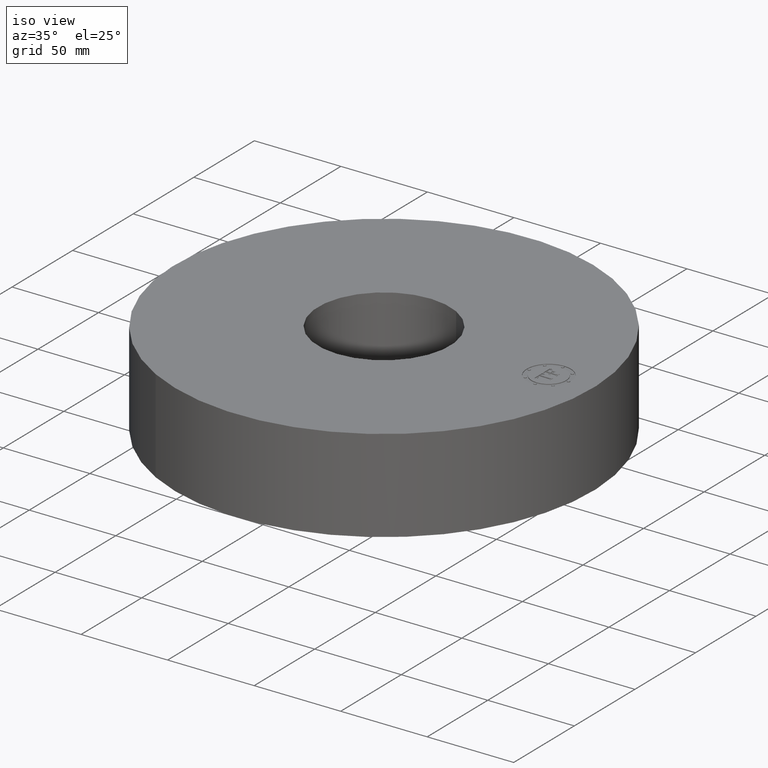
[diagram: clean part render]
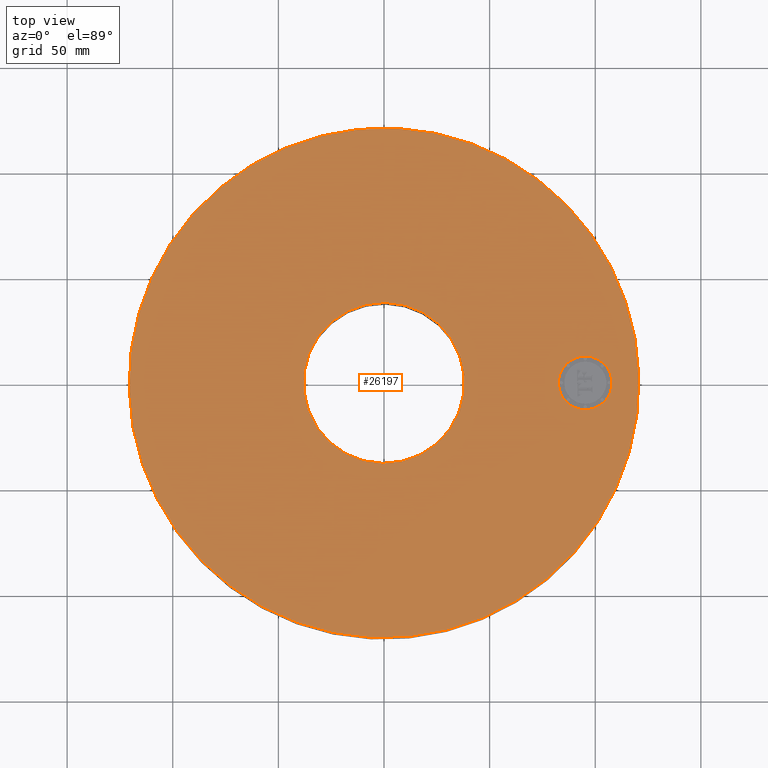
[diagram: tour spotlight — one face highlighted and labeled with its STEP entity id]
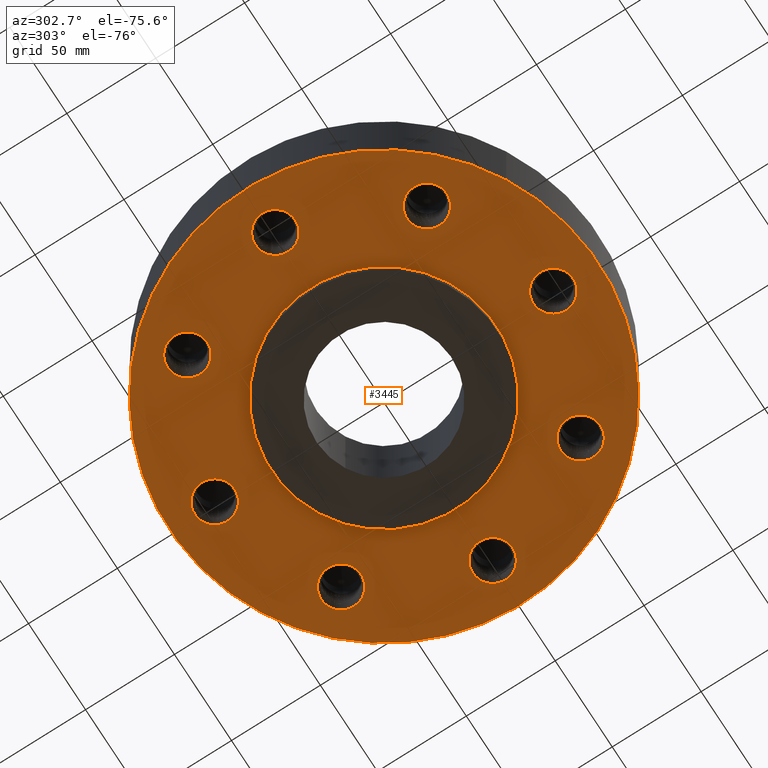
[diagram: tour spotlight — one face highlighted and labeled with its STEP entity id]
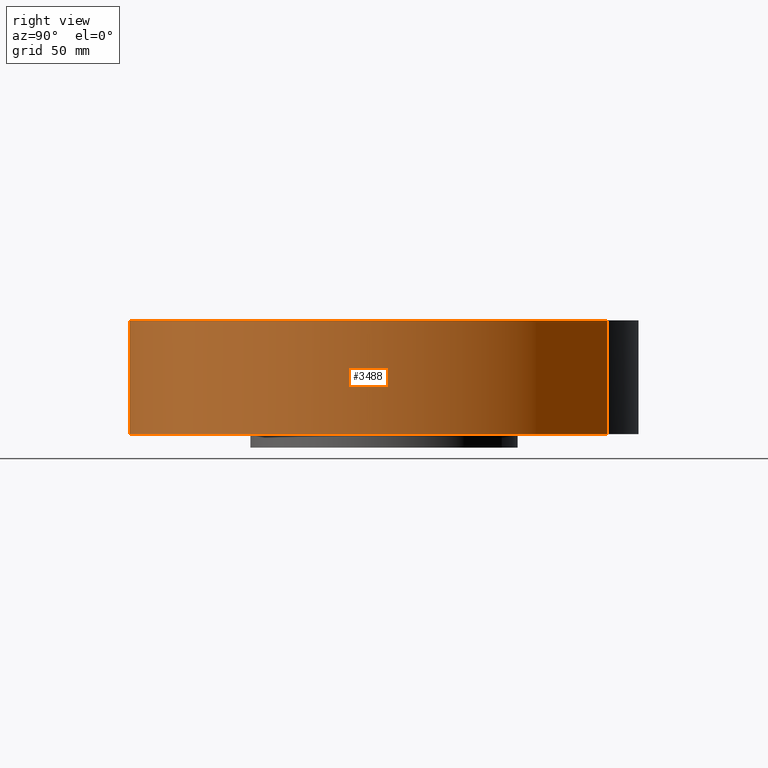
[diagram: tour spotlight — one face highlighted and labeled with its STEP entity id]
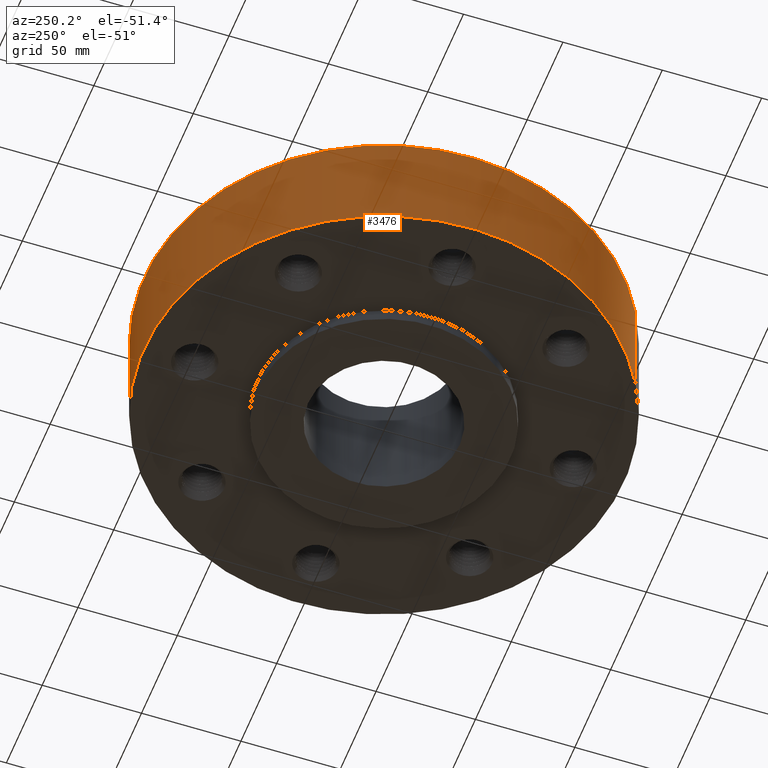
[diagram: tour spotlight — one face highlighted and labeled with its STEP entity id]
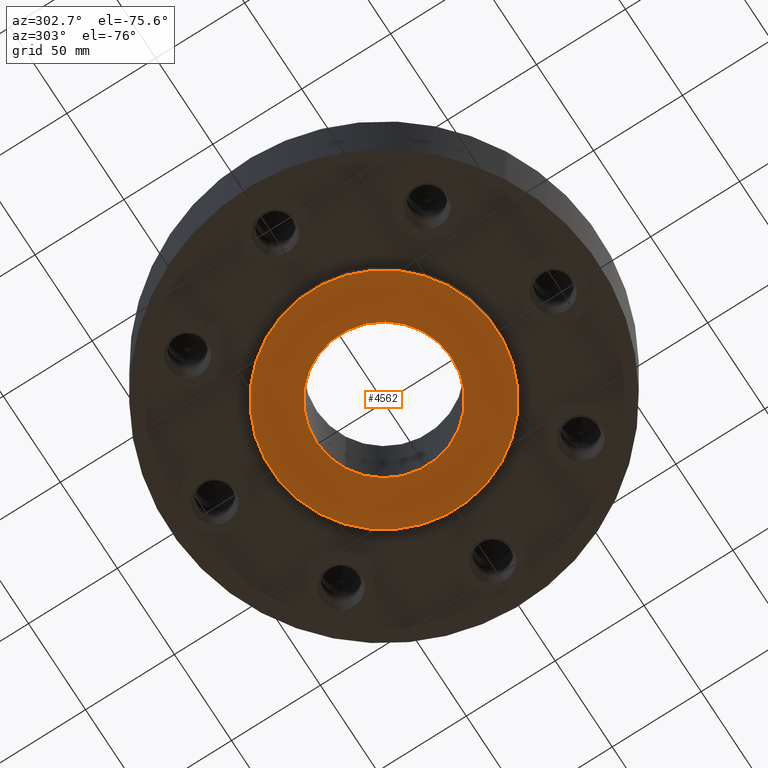
[diagram: tour spotlight — one face highlighted and labeled with its STEP entity id]
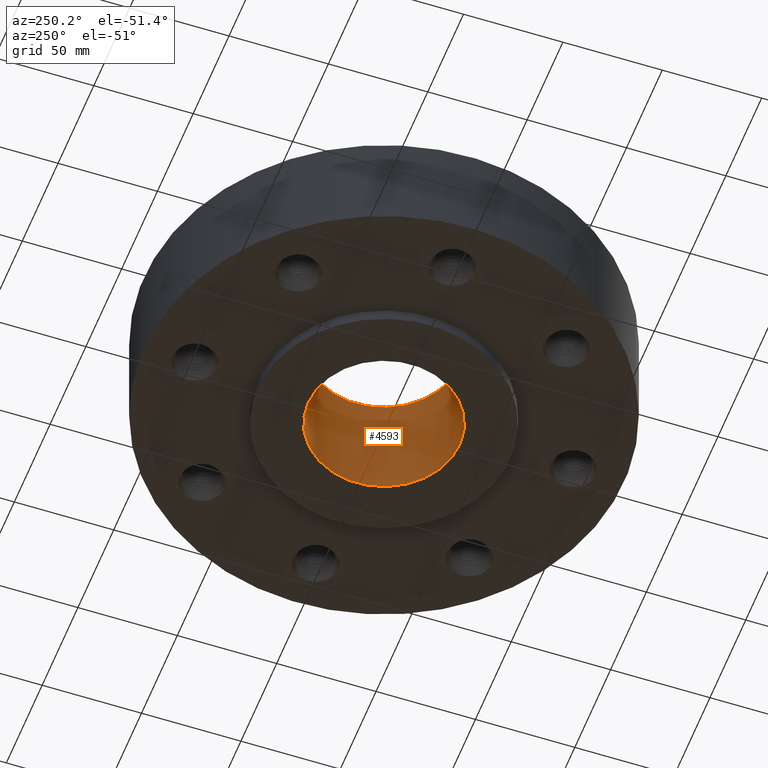
[diagram: tour spotlight — one face highlighted and labeled with its STEP entity id]
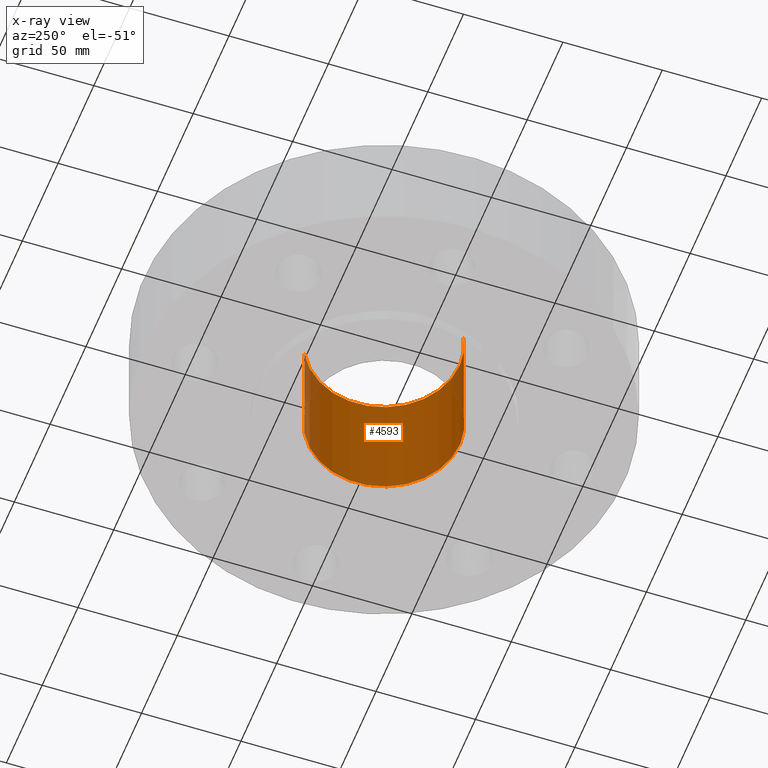
[diagram: x-ray of the same camera — body ghosted, this tour face saturated]
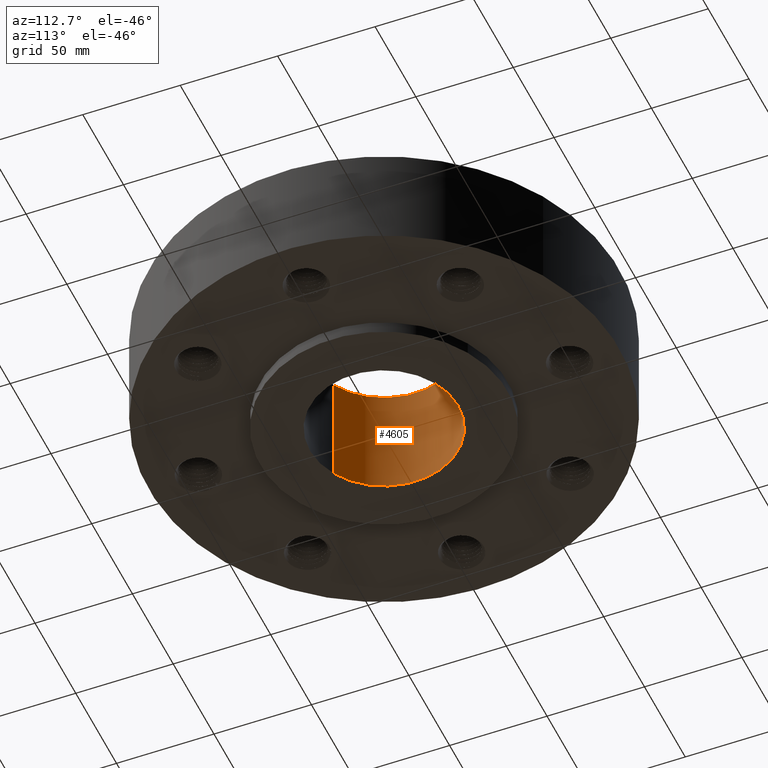
[diagram: tour spotlight — one face highlighted and labeled with its STEP entity id]
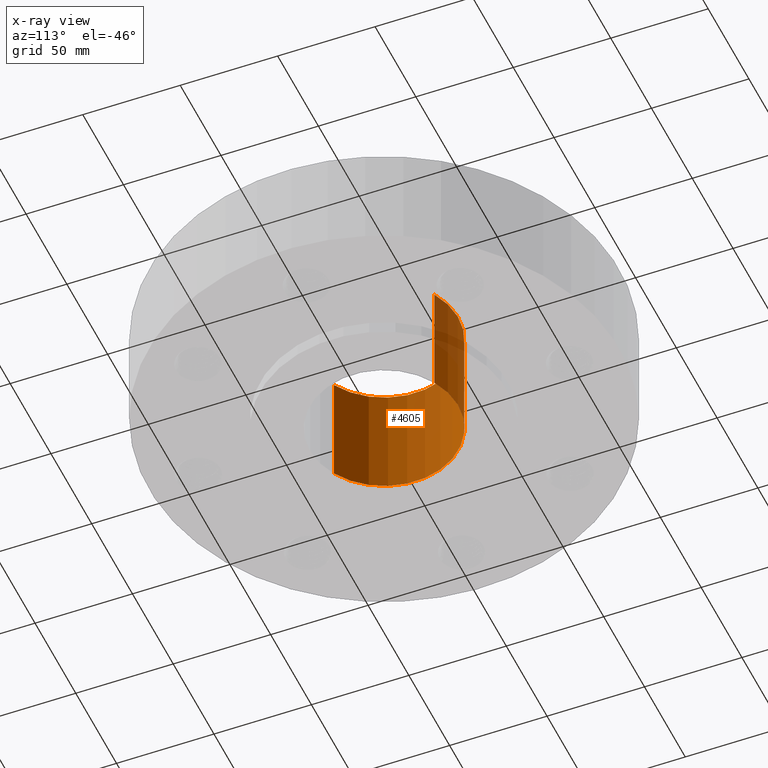
[diagram: x-ray of the same camera — body ghosted, this tour face saturated]
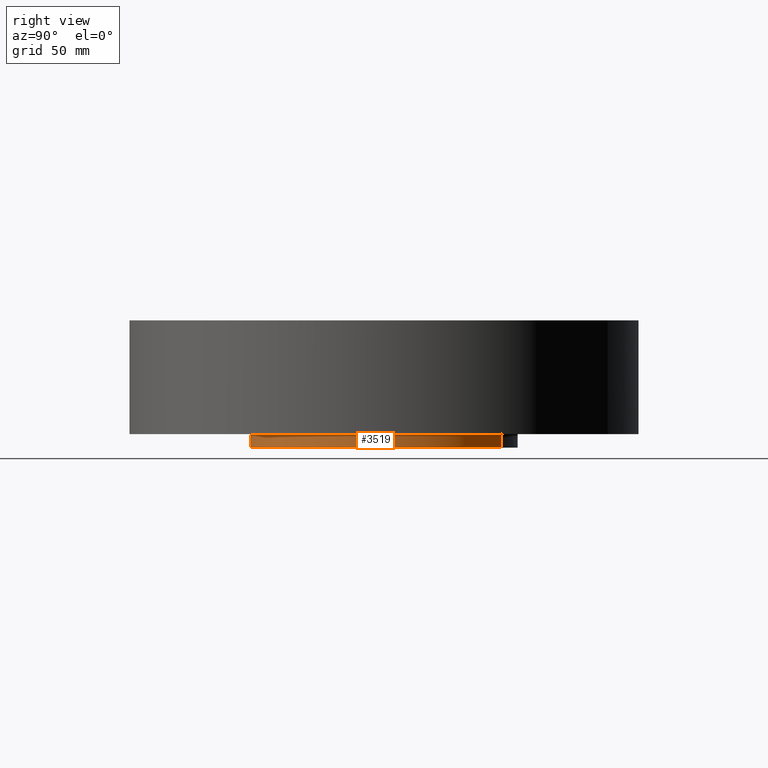
[diagram: tour spotlight — one face highlighted and labeled with its STEP entity id]
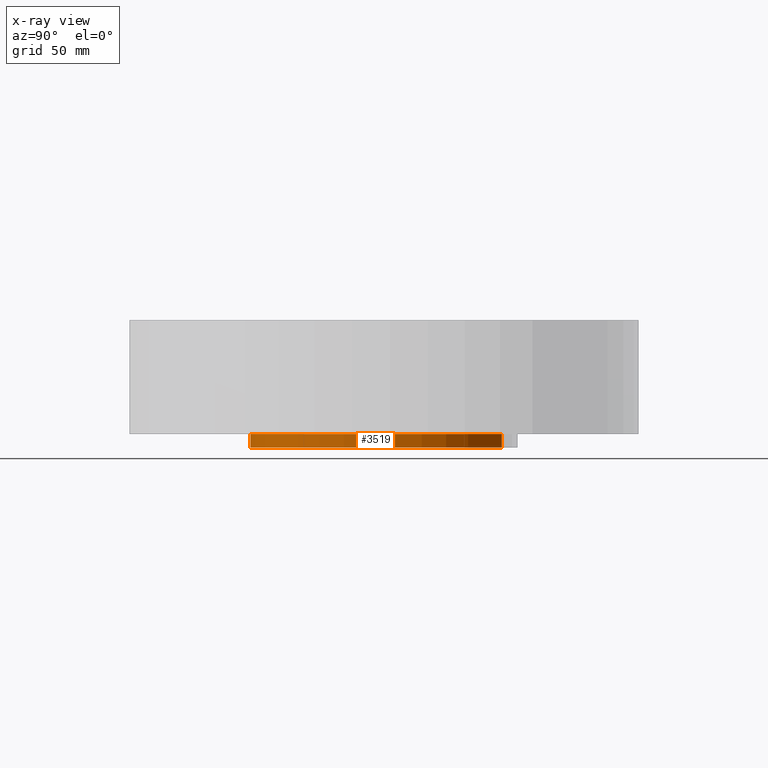
[diagram: x-ray of the same camera — body ghosted, this tour face saturated]
A machine part: a face-by-face anatomy tour. The part has 874 B-rep faces; the first image is the clean iso view, then the 8 largest visible faces are spotlighted one at a time (largest first), each with its STEP entity span.

Face 1 — top view, entity #26197. In plain terms, the highlighted planar face has unit normal (0, 0, -1).
Definition (entity closure, byte-faithful):
#3460=AXIS2_PLACEMENT_3D('Circle Axis2P3D',#3458,#3459,$) ;
#3479=AXIS2_PLACEMENT_3D('Circle Axis2P3D',#3477,#3478,$) ;
#4570=AXIS2_PLACEMENT_3D('Circle Axis2P3D',#4568,#4569,$) ;
#4596=AXIS2_PLACEMENT_3D('Circle Axis2P3D',#4594,#4595,$) ;
#26169=AXIS2_PLACEMENT_3D('Plane Axis2P3D',#26166,#26167,#26168) ;
#26181=AXIS2_PLACEMENT_3D('Circle Axis2P3D',#26179,#26180,$) ;
#26190=AXIS2_PLACEMENT_3D('Circle Axis2P3D',#26188,#26189,$) ;
#3455=CARTESIAN_POINT('Vertex',(-2.27727130838,-4.168517169,2.12000000001)) ;
#3458=CARTESIAN_POINT('Axis2P3D Location',(0.,0.,2.12000000001)) ;
#3462=CARTESIAN_POINT('Vertex',(2.27727130838,4.168517169,2.12000000001)) ;
#3477=CARTESIAN_POINT('Axis2P3D Location',(0.,0.,2.12000000001)) ;
#4568=CARTESIAN_POINT('Axis2P3D Location',(0.,0.,2.12000000001)) ;
#4572=CARTESIAN_POINT('Vertex',(0.719138307909,1.31637384284,2.12000000001)) ;
#4574=CARTESIAN_POINT('Vertex',(-0.719138307909,-1.31637384284,2.12000000001)) ;
#4594=CARTESIAN_POINT('Axis2P3D Location',(0.,0.,2.12000000001)) ;
#26166=CARTESIAN_POINT('Axis2P3D Location',(0.,1.50000000001,2.12000000001)) ;
#26179=CARTESIAN_POINT('Axis2P3D Location',(3.75000000002,0.,2.12000000001)) ;
#26183=CARTESIAN_POINT('Vertex',(3.75000000002,-0.499999995002,2.12000000001)) ;
#26185=CARTESIAN_POINT('Vertex',(3.75000000001,0.499999995002,2.12000000001)) ;
#26188=CARTESIAN_POINT('Axis2P3D Location',(3.75000000002,0.,2.12000000001)) ;
#3459=DIRECTION('Axis2P3D Direction',(0.,0.,-0.0393700787402)) ;
#3478=DIRECTION('Axis2P3D Direction',(0.,0.,-0.0393700787402)) ;
#4569=DIRECTION('Axis2P3D Direction',(0.,0.,-0.0393700787402)) ;
#4595=DIRECTION('Axis2P3D Direction',(0.,0.,-0.0393700787402)) ;
#26167=DIRECTION('Axis2P3D Direction',(0.,0.,-0.0393700787402)) ;
#26168=DIRECTION('Axis2P3D XDirection',(0.0393700787402,0.,0.)) ;
#26180=DIRECTION('Axis2P3D Direction',(0.,0.,-0.0393700787402)) ;
#26189=DIRECTION('Axis2P3D Direction',(0.,0.,-0.0393700787402)) ;
#26172=ORIENTED_EDGE('',*,*,#3481,.F.) ;
#26173=ORIENTED_EDGE('',*,*,#3464,.F.) ;
#26176=ORIENTED_EDGE('',*,*,#4598,.T.) ;
#26177=ORIENTED_EDGE('',*,*,#4576,.T.) ;
#26194=ORIENTED_EDGE('',*,*,#26187,.F.) ;
#26195=ORIENTED_EDGE('',*,*,#26192,.F.) ;
#26178=FACE_BOUND('',#26175,.T.) ;
#26196=FACE_BOUND('',#26193,.T.) ;
#26197=ADVANCED_FACE('PartBody',(#26174,#26178,#26196),#26170,.F.) ;
#3461=CIRCLE('generated circle',#3460,4.75000000002) ;
#3480=CIRCLE('generated circle',#3479,4.75000000002) ;
#4571=CIRCLE('generated circle',#4570,1.50000000001) ;
#4597=CIRCLE('generated circle',#4596,1.50000000001) ;
#26182=CIRCLE('generated circle',#26181,0.499999995002) ;
#26191=CIRCLE('generated circle',#26190,0.499999995002) ;
#3464=EDGE_CURVE('',#3456,#3463,#3461,.T.) ;
#3481=EDGE_CURVE('',#3463,#3456,#3480,.T.) ;
#4576=EDGE_CURVE('',#4573,#4575,#4571,.T.) ;
#4598=EDGE_CURVE('',#4575,#4573,#4597,.T.) ;
#26187=EDGE_CURVE('',#26184,#26186,#26182,.F.) ;
#26192=EDGE_CURVE('',#26186,#26184,#26191,.F.) ;
#26171=EDGE_LOOP('',(#26172,#26173)) ;
#26175=EDGE_LOOP('',(#26176,#26177)) ;
#26193=EDGE_LOOP('',(#26194,#26195)) ;
#26174=FACE_OUTER_BOUND('',#26171,.T.) ;
#26170=PLANE('',#26169) ;
#3456=VERTEX_POINT('',#3455) ;
#3463=VERTEX_POINT('',#3462) ;
#4573=VERTEX_POINT('',#4572) ;
#4575=VERTEX_POINT('',#4574) ;
#26184=VERTEX_POINT('',#26183) ;
#26186=VERTEX_POINT('',#26185) ;

Face 2 — auxiliary view, entity #3445. In plain terms, the highlighted planar face has unit normal (0, 0, -1).
Definition (entity closure, byte-faithful):
#3197=AXIS2_PLACEMENT_3D('Circle Axis2P3D',#3195,#3196,$) ;
#3263=AXIS2_PLACEMENT_3D('Circle Axis2P3D',#3261,#3262,$) ;
#3277=AXIS2_PLACEMENT_3D('Plane Axis2P3D',#3274,#3275,#3276) ;
#3281=AXIS2_PLACEMENT_3D('Circle Axis2P3D',#3279,#3280,$) ;
#3290=AXIS2_PLACEMENT_3D('Circle Axis2P3D',#3288,#3289,$) ;
#3303=AXIS2_PLACEMENT_3D('Circle Axis2P3D',#3301,#3302,$) ;
#3312=AXIS2_PLACEMENT_3D('Circle Axis2P3D',#3310,#3311,$) ;
#3321=AXIS2_PLACEMENT_3D('Circle Axis2P3D',#3319,#3320,$) ;
#3330=AXIS2_PLACEMENT_3D('Circle Axis2P3D',#3328,#3329,$) ;
#3339=AXIS2_PLACEMENT_3D('Circle Axis2P3D',#3337,#3338,$) ;
#3348=AXIS2_PLACEMENT_3D('Circle Axis2P3D',#3346,#3347,$) ;
#3357=AXIS2_PLACEMENT_3D('Circle Axis2P3D',#3355,#3356,$) ;
#3366=AXIS2_PLACEMENT_3D('Circle Axis2P3D',#3364,#3365,$) ;
#3375=AXIS2_PLACEMENT_3D('Circle Axis2P3D',#3373,#3374,$) ;
#3384=AXIS2_PLACEMENT_3D('Circle Axis2P3D',#3382,#3383,$) ;
#3393=AXIS2_PLACEMENT_3D('Circle Axis2P3D',#3391,#3392,$) ;
#3402=AXIS2_PLACEMENT_3D('Circle Axis2P3D',#3400,#3401,$) ;
#3411=AXIS2_PLACEMENT_3D('Circle Axis2P3D',#3409,#3410,$) ;
#3420=AXIS2_PLACEMENT_3D('Circle Axis2P3D',#3418,#3419,$) ;
#3429=AXIS2_PLACEMENT_3D('Circle Axis2P3D',#3427,#3428,$) ;
#3438=AXIS2_PLACEMENT_3D('Circle Axis2P3D',#3436,#3437,$) ;
#3192=CARTESIAN_POINT('Vertex',(3.04041950438,2.86403594306,-8.74191357973E-018)) ;
#3195=CARTESIAN_POINT('Axis2P3D Location',(2.65165042946,2.65165042946,-8.74191357973E-018)) ;
#3199=CARTESIAN_POINT('Vertex',(2.26288135454,2.43926491586,-8.74191357973E-018)) ;
#3261=CARTESIAN_POINT('Axis2P3D Location',(2.65165042946,2.65165042946,-8.74191357973E-018)) ;
#3274=CARTESIAN_POINT('Axis2P3D Location',(0.,4.75000000002,0.)) ;
#3279=CARTESIAN_POINT('Axis2P3D Location',(0.,0.,0.)) ;
#3283=CARTESIAN_POINT('Vertex',(-2.27727130838,-4.168517169,-3.94435140717E-014)) ;
#3285=CARTESIAN_POINT('Vertex',(2.27727130838,4.168517169,-3.94435140717E-014)) ;
#3288=CARTESIAN_POINT('Axis2P3D Location',(0.,0.,0.)) ;
#3301=CARTESIAN_POINT('Axis2P3D Location',(0.,0.,0.)) ;
#3305=CARTESIAN_POINT('Vertex',(1.19856384652,2.19395640473,-2.82538646897E-014)) ;
#3307=CARTESIAN_POINT('Vertex',(-1.19856384652,-2.19395640473,-2.82538646897E-014)) ;
#3310=CARTESIAN_POINT('Axis2P3D Location',(0.,0.,0.)) ;
#3319=CARTESIAN_POINT('Axis2P3D Location',(3.75000000001,1.1189649382E-015,0.)) ;
#3323=CARTESIAN_POINT('Vertex',(4.1750804861,-0.124722012297,0.)) ;
#3325=CARTESIAN_POINT('Vertex',(3.32491951393,0.124722012297,8.74191357973E-018)) ;
#3328=CARTESIAN_POINT('Axis2P3D Location',(3.75000000002,1.1189649382E-015,0.)) ;
#3337=CARTESIAN_POINT('Axis2P3D Location',(2.65165042946,-2.65165042946,0.)) ;
#3341=CARTESIAN_POINT('Vertex',(2.86403594306,-3.04041950438,0.)) ;
#3343=CARTESIAN_POINT('Vertex',(2.43926491586,-2.26288135454,-8.74191357973E-018)) ;
#3346=CARTESIAN_POINT('Axis2P3D Location',(2.65165042946,-2.65165042946,0.)) ;
#3355=CARTESIAN_POINT('Axis2P3D Location',(1.71341506163E-015,-3.75000000001,0.)) ;
#3359=CARTESIAN_POINT('Vertex',(-0.124722012297,-4.1750804861,0.)) ;
#3361=CARTESIAN_POINT('Vertex',(0.124722012297,-3.32491951393,8.74191357973E-018)) ;
#3364=CARTESIAN_POINT('Axis2P3D Location',(1.64347975299E-015,-3.75000000001,0.)) ;
#3373=CARTESIAN_POINT('Axis2P3D Location',(-2.65165042946,-2.65165042946,0.)) ;
#3377=CARTESIAN_POINT('Vertex',(-3.04041950438,-2.86403594306,0.)) ;
#3379=CARTESIAN_POINT('Vertex',(-2.26288135454,-2.43926491586,-8.74191357973E-018)) ;
#3382=CARTESIAN_POINT('Axis2P3D Location',(-2.65165042946,-2.65165042946,0.)) ;
#3391=CARTESIAN_POINT('Axis2P3D Location',(-3.75000000002,-1.1189649382E-015,0.)) ;
#3395=CARTESIAN_POINT('Vertex',(-4.1750804861,0.124722012297,0.)) ;
#3397=CARTESIAN_POINT('Vertex',(-3.32491951393,-0.124722012297,9.6161049377E-017)) ;
#3400=CARTESIAN_POINT('Axis2P3D Location',(-3.75000000002,-1.1189649382E-015,0.)) ;
#3409=CARTESIAN_POINT('Axis2P3D Location',(-2.65165042946,2.65165042946,0.)) ;
#3413=CARTESIAN_POINT('Vertex',(-2.86403594306,3.04041950438,0.)) ;
#3415=CARTESIAN_POINT('Vertex',(-2.43926491586,2.26288135454,-8.74191357973E-018)) ;
#3418=CARTESIAN_POINT('Axis2P3D Location',(-2.65165042946,2.65165042946,0.)) ;
#3427=CARTESIAN_POINT('Axis2P3D Location',(-1.88825333322E-015,3.75000000002,0.)) ;
#3431=CARTESIAN_POINT('Vertex',(0.124722012297,4.1750804861,0.)) ;
#3433=CARTESIAN_POINT('Vertex',(-0.124722012297,3.32491951393,8.74191357973E-018)) ;
#3436=CARTESIAN_POINT('Axis2P3D Location',(-1.67844740731E-015,3.75000000002,0.)) ;
#3196=DIRECTION('Axis2P3D Direction',(0.,0.,-0.0393700787402)) ;
#3262=DIRECTION('Axis2P3D Direction',(0.,0.,-0.0393700787402)) ;
#3275=DIRECTION('Axis2P3D Direction',(0.,0.,-0.0393700787402)) ;
#3276=DIRECTION('Axis2P3D XDirection',(0.0393700787402,0.,0.)) ;
#3280=DIRECTION('Axis2P3D Direction',(0.,0.,-0.0393700787402)) ;
#3289=DIRECTION('Axis2P3D Direction',(0.,0.,-0.0393700787402)) ;
#3302=DIRECTION('Axis2P3D Direction',(0.,0.,-0.0393700787402)) ;
#3311=DIRECTION('Axis2P3D Direction',(0.,0.,-0.0393700787402)) ;
#3320=DIRECTION('Axis2P3D Direction',(0.,0.,-0.0393700787402)) ;
#3329=DIRECTION('Axis2P3D Direction',(0.,0.,-0.0393700787402)) ;
#3338=DIRECTION('Axis2P3D Direction',(0.,0.,-0.0393700787402)) ;
#3347=DIRECTION('Axis2P3D Direction',(0.,0.,-0.0393700787402)) ;
#3356=DIRECTION('Axis2P3D Direction',(0.,0.,-0.0393700787402)) ;
#3365=DIRECTION('Axis2P3D Direction',(0.,0.,-0.0393700787402)) ;
#3374=DIRECTION('Axis2P3D Direction',(0.,0.,-0.0393700787402)) ;
#3383=DIRECTION('Axis2P3D Direction',(0.,0.,-0.0393700787402)) ;
#3392=DIRECTION('Axis2P3D Direction',(0.,0.,-0.0393700787402)) ;
#3401=DIRECTION('Axis2P3D Direction',(0.,0.,-0.0393700787402)) ;
#3410=DIRECTION('Axis2P3D Direction',(0.,0.,-0.0393700787402)) ;
#3419=DIRECTION('Axis2P3D Direction',(0.,0.,-0.0393700787402)) ;
#3428=DIRECTION('Axis2P3D Direction',(0.,0.,-0.0393700787402)) ;
#3437=DIRECTION('Axis2P3D Direction',(0.,0.,-0.0393700787402)) ;
#3294=ORIENTED_EDGE('',*,*,#3287,.T.) ;
#3295=ORIENTED_EDGE('',*,*,#3292,.T.) ;
#3298=ORIENTED_EDGE('',*,*,#3265,.F.) ;
#3299=ORIENTED_EDGE('',*,*,#3201,.F.) ;
#3316=ORIENTED_EDGE('',*,*,#3309,.F.) ;
#3317=ORIENTED_EDGE('',*,*,#3314,.F.) ;
#3334=ORIENTED_EDGE('',*,*,#3327,.F.) ;
#3335=ORIENTED_EDGE('',*,*,#3332,.F.) ;
#3352=ORIENTED_EDGE('',*,*,#3345,.F.) ;
#3353=ORIENTED_EDGE('',*,*,#3350,.F.) ;
#3370=ORIENTED_EDGE('',*,*,#3363,.F.) ;
#3371=ORIENTED_EDGE('',*,*,#3368,.F.) ;
#3388=ORIENTED_EDGE('',*,*,#3381,.F.) ;
#3389=ORIENTED_EDGE('',*,*,#3386,.F.) ;
#3406=ORIENTED_EDGE('',*,*,#3399,.F.) ;
#3407=ORIENTED_EDGE('',*,*,#3404,.F.) ;
#3424=ORIENTED_EDGE('',*,*,#3417,.F.) ;
#3425=ORIENTED_EDGE('',*,*,#3422,.F.) ;
#3442=ORIENTED_EDGE('',*,*,#3435,.F.) ;
#3443=ORIENTED_EDGE('',*,*,#3440,.F.) ;
#3300=FACE_BOUND('',#3297,.T.) ;
#3318=FACE_BOUND('',#3315,.T.) ;
#3336=FACE_BOUND('',#3333,.T.) ;
#3354=FACE_BOUND('',#3351,.T.) ;
#3372=FACE_BOUND('',#3369,.T.) ;
#3390=FACE_BOUND('',#3387,.T.) ;
#3408=FACE_BOUND('',#3405,.T.) ;
#3426=FACE_BOUND('',#3423,.T.) ;
#3444=FACE_BOUND('',#3441,.T.) ;
#3445=ADVANCED_FACE('PartBody',(#3296,#3300,#3318,#3336,#3354,#3372,#3390,#3408,#3426,#3444),#3278,.T.) ;
#3198=CIRCLE('generated circle',#3197,0.443000000002) ;
#3264=CIRCLE('generated circle',#3263,0.443000000002) ;
#3282=CIRCLE('generated circle',#3281,4.75000000002) ;
#3291=CIRCLE('generated circle',#3290,4.75000000002) ;
#3304=CIRCLE('generated circle',#3303,2.50000000001) ;
#3313=CIRCLE('generated circle',#3312,2.50000000001) ;
#3322=CIRCLE('generated circle',#3321,0.443000000002) ;
#3331=CIRCLE('generated circle',#3330,0.443000000002) ;
#3340=CIRCLE('generated circle',#3339,0.443000000002) ;
#3349=CIRCLE('generated circle',#3348,0.443000000002) ;
#3358=CIRCLE('generated circle',#3357,0.443000000002) ;
#3367=CIRCLE('generated circle',#3366,0.443000000002) ;
#3376=CIRCLE('generated circle',#3375,0.443000000002) ;
#3385=CIRCLE('generated circle',#3384,0.443000000002) ;
#3394=CIRCLE('generated circle',#3393,0.443000000002) ;
#3403=CIRCLE('generated circle',#3402,0.443000000002) ;
#3412=CIRCLE('generated circle',#3411,0.443000000002) ;
#3421=CIRCLE('generated circle',#3420,0.443000000002) ;
#3430=CIRCLE('generated circle',#3429,0.443000000002) ;
#3439=CIRCLE('generated circle',#3438,0.443000000002) ;
#3201=EDGE_CURVE('',#3193,#3200,#3198,.T.) ;
#3265=EDGE_CURVE('',#3200,#3193,#3264,.T.) ;
#3287=EDGE_CURVE('',#3284,#3286,#3282,.T.) ;
#3292=EDGE_CURVE('',#3286,#3284,#3291,.T.) ;
#3309=EDGE_CURVE('',#3306,#3308,#3304,.T.) ;
#3314=EDGE_CURVE('',#3308,#3306,#3313,.T.) ;
#3327=EDGE_CURVE('',#3324,#3326,#3322,.T.) ;
#3332=EDGE_CURVE('',#3326,#3324,#3331,.T.) ;
#3345=EDGE_CURVE('',#3342,#3344,#3340,.T.) ;
#3350=EDGE_CURVE('',#3344,#3342,#3349,.T.) ;
#3363=EDGE_CURVE('',#3360,#3362,#3358,.T.) ;
#3368=EDGE_CURVE('',#3362,#3360,#3367,.T.) ;
#3381=EDGE_CURVE('',#3378,#3380,#3376,.T.) ;
#3386=EDGE_CURVE('',#3380,#3378,#3385,.T.) ;
#3399=EDGE_CURVE('',#3396,#3398,#3394,.T.) ;
#3404=EDGE_CURVE('',#3398,#3396,#3403,.T.) ;
#3417=EDGE_CURVE('',#3414,#3416,#3412,.T.) ;
#3422=EDGE_CURVE('',#3416,#3414,#3421,.T.) ;
#3435=EDGE_CURVE('',#3432,#3434,#3430,.T.) ;
#3440=EDGE_CURVE('',#3434,#3432,#3439,.T.) ;
#3293=EDGE_LOOP('',(#3294,#3295)) ;
#3297=EDGE_LOOP('',(#3298,#3299)) ;
#3315=EDGE_LOOP('',(#3316,#3317)) ;
#3333=EDGE_LOOP('',(#3334,#3335)) ;
#3351=EDGE_LOOP('',(#3352,#3353)) ;
#3369=EDGE_LOOP('',(#3370,#3371)) ;
#3387=EDGE_LOOP('',(#3388,#3389)) ;
#3405=EDGE_LOOP('',(#3406,#3407)) ;
#3423=EDGE_LOOP('',(#3424,#3425)) ;
#3441=EDGE_LOOP('',(#3442,#3443)) ;
#3296=FACE_OUTER_BOUND('',#3293,.T.) ;
#3278=PLANE('',#3277) ;
#3193=VERTEX_POINT('',#3192) ;
#3200=VERTEX_POINT('',#3199) ;
#3284=VERTEX_POINT('',#3283) ;
#3286=VERTEX_POINT('',#3285) ;
#3306=VERTEX_POINT('',#3305) ;
#3308=VERTEX_POINT('',#3307) ;
#3324=VERTEX_POINT('',#3323) ;
#3326=VERTEX_POINT('',#3325) ;
#3342=VERTEX_POINT('',#3341) ;
#3344=VERTEX_POINT('',#3343) ;
#3360=VERTEX_POINT('',#3359) ;
#3362=VERTEX_POINT('',#3361) ;
#3378=VERTEX_POINT('',#3377) ;
#3380=VERTEX_POINT('',#3379) ;
#3396=VERTEX_POINT('',#3395) ;
#3398=VERTEX_POINT('',#3397) ;
#3414=VERTEX_POINT('',#3413) ;
#3416=VERTEX_POINT('',#3415) ;
#3432=VERTEX_POINT('',#3431) ;
#3434=VERTEX_POINT('',#3433) ;

Face 3 — right view, entity #3488. In plain terms, the highlighted cylindrical surface (partial cylindrical patch) has radius 120.65 mm, axis along (0, 0, -1).
Definition (entity closure, byte-faithful):
#3290=AXIS2_PLACEMENT_3D('Circle Axis2P3D',#3288,#3289,$) ;
#3449=AXIS2_PLACEMENT_3D('Cylinder Axis2P3D',#3446,#3447,#3448) ;
#3479=AXIS2_PLACEMENT_3D('Circle Axis2P3D',#3477,#3478,$) ;
#3283=CARTESIAN_POINT('Vertex',(-2.27727130838,-4.168517169,-3.94435140717E-014)) ;
#3285=CARTESIAN_POINT('Vertex',(2.27727130838,4.168517169,-3.94435140717E-014)) ;
#3288=CARTESIAN_POINT('Axis2P3D Location',(0.,0.,0.)) ;
#3446=CARTESIAN_POINT('Axis2P3D Location',(0.,0.,0.935000000004)) ;
#3451=CARTESIAN_POINT('Line Origine',(-2.27727130838,-4.168517169,1.06)) ;
#3455=CARTESIAN_POINT('Vertex',(-2.27727130838,-4.168517169,2.12000000001)) ;
#3462=CARTESIAN_POINT('Vertex',(2.27727130838,4.168517169,2.12000000001)) ;
#3465=CARTESIAN_POINT('Line Origine',(2.27727130838,4.168517169,1.06)) ;
#3477=CARTESIAN_POINT('Axis2P3D Location',(0.,0.,2.12000000001)) ;
#3289=DIRECTION('Axis2P3D Direction',(0.,0.,-0.0393700787402)) ;
#3447=DIRECTION('Axis2P3D Direction',(0.,0.,-0.0393700787402)) ;
#3448=DIRECTION('Axis2P3D XDirection',(0.0188750212049,0.0345504945626,0.)) ;
#3452=DIRECTION('Vector Direction',(0.,0.,-0.0393700787402)) ;
#3466=DIRECTION('Vector Direction',(0.,0.,-0.0393700787402)) ;
#3478=DIRECTION('Axis2P3D Direction',(0.,0.,-0.0393700787402)) ;
#3453=VECTOR('Line Direction',#3452,0.0393700787402) ;
#3467=VECTOR('Line Direction',#3466,0.0393700787402) ;
#3483=ORIENTED_EDGE('',*,*,#3292,.F.) ;
#3484=ORIENTED_EDGE('',*,*,#3469,.T.) ;
#3485=ORIENTED_EDGE('',*,*,#3481,.T.) ;
#3486=ORIENTED_EDGE('',*,*,#3457,.F.) ;
#3488=ADVANCED_FACE('PartBody',(#3487),#3450,.T.) ;
#3291=CIRCLE('generated circle',#3290,4.75000000002) ;
#3480=CIRCLE('generated circle',#3479,4.75000000002) ;
#3450=CYLINDRICAL_SURFACE('generated cylinder',#3449,4.75000000002) ;
#3292=EDGE_CURVE('',#3286,#3284,#3291,.T.) ;
#3457=EDGE_CURVE('',#3284,#3456,#3454,.F.) ;
#3469=EDGE_CURVE('',#3286,#3463,#3468,.F.) ;
#3481=EDGE_CURVE('',#3463,#3456,#3480,.T.) ;
#3482=EDGE_LOOP('',(#3483,#3484,#3485,#3486)) ;
#3487=FACE_OUTER_BOUND('',#3482,.T.) ;
#3454=LINE('Line',#3451,#3453) ;
#3468=LINE('Line',#3465,#3467) ;
#3284=VERTEX_POINT('',#3283) ;
#3286=VERTEX_POINT('',#3285) ;
#3456=VERTEX_POINT('',#3455) ;
#3463=VERTEX_POINT('',#3462) ;

Face 4 — auxiliary view, entity #3476. In plain terms, the highlighted cylindrical surface (partial cylindrical patch) has radius 120.65 mm, axis along (0, 0, -1).
Definition (entity closure, byte-faithful):
#3281=AXIS2_PLACEMENT_3D('Circle Axis2P3D',#3279,#3280,$) ;
#3449=AXIS2_PLACEMENT_3D('Cylinder Axis2P3D',#3446,#3447,#3448) ;
#3460=AXIS2_PLACEMENT_3D('Circle Axis2P3D',#3458,#3459,$) ;
#3279=CARTESIAN_POINT('Axis2P3D Location',(0.,0.,0.)) ;
#3283=CARTESIAN_POINT('Vertex',(-2.27727130838,-4.168517169,-3.94435140717E-014)) ;
#3285=CARTESIAN_POINT('Vertex',(2.27727130838,4.168517169,-3.94435140717E-014)) ;
#3446=CARTESIAN_POINT('Axis2P3D Location',(0.,0.,0.935000000004)) ;
#3451=CARTESIAN_POINT('Line Origine',(-2.27727130838,-4.168517169,1.06)) ;
#3455=CARTESIAN_POINT('Vertex',(-2.27727130838,-4.168517169,2.12000000001)) ;
#3458=CARTESIAN_POINT('Axis2P3D Location',(0.,0.,2.12000000001)) ;
#3462=CARTESIAN_POINT('Vertex',(2.27727130838,4.168517169,2.12000000001)) ;
#3465=CARTESIAN_POINT('Line Origine',(2.27727130838,4.168517169,1.06)) ;
#3280=DIRECTION('Axis2P3D Direction',(0.,0.,-0.0393700787402)) ;
#3447=DIRECTION('Axis2P3D Direction',(0.,0.,-0.0393700787402)) ;
#3448=DIRECTION('Axis2P3D XDirection',(0.0188750212049,0.0345504945626,0.)) ;
#3452=DIRECTION('Vector Direction',(0.,0.,-0.0393700787402)) ;
#3459=DIRECTION('Axis2P3D Direction',(0.,0.,-0.0393700787402)) ;
#3466=DIRECTION('Vector Direction',(0.,0.,-0.0393700787402)) ;
#3453=VECTOR('Line Direction',#3452,0.0393700787402) ;
#3467=VECTOR('Line Direction',#3466,0.0393700787402) ;
#3471=ORIENTED_EDGE('',*,*,#3287,.F.) ;
#3472=ORIENTED_EDGE('',*,*,#3457,.T.) ;
#3473=ORIENTED_EDGE('',*,*,#3464,.T.) ;
#3474=ORIENTED_EDGE('',*,*,#3469,.F.) ;
#3476=ADVANCED_FACE('PartBody',(#3475),#3450,.T.) ;
#3282=CIRCLE('generated circle',#3281,4.75000000002) ;
#3461=CIRCLE('generated circle',#3460,4.75000000002) ;
#3450=CYLINDRICAL_SURFACE('generated cylinder',#3449,4.75000000002) ;
#3287=EDGE_CURVE('',#3284,#3286,#3282,.T.) ;
#3457=EDGE_CURVE('',#3284,#3456,#3454,.F.) ;
#3464=EDGE_CURVE('',#3456,#3463,#3461,.T.) ;
#3469=EDGE_CURVE('',#3286,#3463,#3468,.F.) ;
#3470=EDGE_LOOP('',(#3471,#3472,#3473,#3474)) ;
#3475=FACE_OUTER_BOUND('',#3470,.T.) ;
#3454=LINE('Line',#3451,#3453) ;
#3468=LINE('Line',#3465,#3467) ;
#3284=VERTEX_POINT('',#3283) ;
#3286=VERTEX_POINT('',#3285) ;
#3456=VERTEX_POINT('',#3455) ;
#3463=VERTEX_POINT('',#3462) ;

Face 5 — auxiliary view, entity #4562. In plain terms, the highlighted planar face has unit normal (0, 0, -1).
Definition (entity closure, byte-faithful):
#3496=AXIS2_PLACEMENT_3D('Circle Axis2P3D',#3494,#3495,$) ;
#3522=AXIS2_PLACEMENT_3D('Circle Axis2P3D',#3520,#3521,$) ;
#4538=AXIS2_PLACEMENT_3D('Plane Axis2P3D',#4535,#4536,#4537) ;
#4546=AXIS2_PLACEMENT_3D('Circle Axis2P3D',#4544,#4545,$) ;
#4555=AXIS2_PLACEMENT_3D('Circle Axis2P3D',#4553,#4554,$) ;
#3494=CARTESIAN_POINT('Axis2P3D Location',(0.,0.,-0.250000000001)) ;
#3498=CARTESIAN_POINT('Vertex',(1.19856384652,2.19395640473,-0.250000000001)) ;
#3500=CARTESIAN_POINT('Vertex',(-1.19856384652,-2.19395640473,-0.250000000001)) ;
#3520=CARTESIAN_POINT('Axis2P3D Location',(0.,0.,-0.250000000001)) ;
#4535=CARTESIAN_POINT('Axis2P3D Location',(0.,2.50000000001,-0.250000000001)) ;
#4544=CARTESIAN_POINT('Axis2P3D Location',(0.,0.,-0.250000000001)) ;
#4548=CARTESIAN_POINT('Vertex',(0.719138307909,1.31637384284,-0.250000000001)) ;
#4550=CARTESIAN_POINT('Vertex',(-0.719138307909,-1.31637384284,-0.250000000001)) ;
#4553=CARTESIAN_POINT('Axis2P3D Location',(0.,0.,-0.250000000001)) ;
#3495=DIRECTION('Axis2P3D Direction',(0.,0.,-0.0393700787402)) ;
#3521=DIRECTION('Axis2P3D Direction',(0.,0.,-0.0393700787402)) ;
#4536=DIRECTION('Axis2P3D Direction',(0.,0.,-0.0393700787402)) ;
#4537=DIRECTION('Axis2P3D XDirection',(0.0393700787402,0.,0.)) ;
#4545=DIRECTION('Axis2P3D Direction',(0.,0.,-0.0393700787402)) ;
#4554=DIRECTION('Axis2P3D Direction',(0.,0.,-0.0393700787402)) ;
#4541=ORIENTED_EDGE('',*,*,#3524,.T.) ;
#4542=ORIENTED_EDGE('',*,*,#3502,.T.) ;
#4559=ORIENTED_EDGE('',*,*,#4552,.F.) ;
#4560=ORIENTED_EDGE('',*,*,#4557,.F.) ;
#4561=FACE_BOUND('',#4558,.T.) ;
#4562=ADVANCED_FACE('PartBody',(#4543,#4561),#4539,.T.) ;
#3497=CIRCLE('generated circle',#3496,2.50000000001) ;
#3523=CIRCLE('generated circle',#3522,2.50000000001) ;
#4547=CIRCLE('generated circle',#4546,1.50000000001) ;
#4556=CIRCLE('generated circle',#4555,1.50000000001) ;
#3502=EDGE_CURVE('',#3499,#3501,#3497,.T.) ;
#3524=EDGE_CURVE('',#3501,#3499,#3523,.T.) ;
#4552=EDGE_CURVE('',#4549,#4551,#4547,.T.) ;
#4557=EDGE_CURVE('',#4551,#4549,#4556,.T.) ;
#4540=EDGE_LOOP('',(#4541,#4542)) ;
#4558=EDGE_LOOP('',(#4559,#4560)) ;
#4543=FACE_OUTER_BOUND('',#4540,.T.) ;
#4539=PLANE('',#4538) ;
#3499=VERTEX_POINT('',#3498) ;
#3501=VERTEX_POINT('',#3500) ;
#4549=VERTEX_POINT('',#4548) ;
#4551=VERTEX_POINT('',#4550) ;

Face 6 — auxiliary view, entity #4593. An x-ray twin of the same camera follows (body ghosted, this face saturated) — the face is partly hidden behind the body. In plain terms, the highlighted cylindrical surface (partial cylindrical patch) has radius 38.1 mm, axis along (0, 0, -1).
Definition (entity closure, byte-faithful):
#4546=AXIS2_PLACEMENT_3D('Circle Axis2P3D',#4544,#4545,$) ;
#4566=AXIS2_PLACEMENT_3D('Cylinder Axis2P3D',#4563,#4564,#4565) ;
#4570=AXIS2_PLACEMENT_3D('Circle Axis2P3D',#4568,#4569,$) ;
#4544=CARTESIAN_POINT('Axis2P3D Location',(0.,0.,-0.250000000001)) ;
#4548=CARTESIAN_POINT('Vertex',(0.719138307909,1.31637384284,-0.250000000001)) ;
#4550=CARTESIAN_POINT('Vertex',(-0.719138307909,-1.31637384284,-0.250000000001)) ;
#4563=CARTESIAN_POINT('Axis2P3D Location',(0.,0.,0.935000000004)) ;
#4568=CARTESIAN_POINT('Axis2P3D Location',(0.,0.,2.12000000001)) ;
#4572=CARTESIAN_POINT('Vertex',(0.719138307909,1.31637384284,2.12000000001)) ;
#4574=CARTESIAN_POINT('Vertex',(-0.719138307909,-1.31637384284,2.12000000001)) ;
#4577=CARTESIAN_POINT('Line Origine',(0.719138307909,1.31637384284,0.935000000004)) ;
#4582=CARTESIAN_POINT('Line Origine',(-0.719138307909,-1.31637384284,0.935000000004)) ;
#4545=DIRECTION('Axis2P3D Direction',(0.,0.,-0.0393700787402)) ;
#4564=DIRECTION('Axis2P3D Direction',(0.,0.,-0.0393700787402)) ;
#4565=DIRECTION('Axis2P3D XDirection',(-0.0188750212049,-0.0345504945626,0.)) ;
#4569=DIRECTION('Axis2P3D Direction',(0.,0.,-0.0393700787402)) ;
#4578=DIRECTION('Vector Direction',(0.,0.,-0.0393700787402)) ;
#4583=DIRECTION('Vector Direction',(0.,0.,-0.0393700787402)) ;
#4579=VECTOR('Line Direction',#4578,0.0393700787402) ;
#4584=VECTOR('Line Direction',#4583,0.0393700787402) ;
#4588=ORIENTED_EDGE('',*,*,#4576,.F.) ;
#4589=ORIENTED_EDGE('',*,*,#4581,.T.) ;
#4590=ORIENTED_EDGE('',*,*,#4552,.T.) ;
#4591=ORIENTED_EDGE('',*,*,#4586,.F.) ;
#4593=ADVANCED_FACE('PartBody',(#4592),#4567,.F.) ;
#4547=CIRCLE('generated circle',#4546,1.50000000001) ;
#4571=CIRCLE('generated circle',#4570,1.50000000001) ;
#4567=CYLINDRICAL_SURFACE('generated cylinder',#4566,1.50000000001) ;
#4552=EDGE_CURVE('',#4549,#4551,#4547,.T.) ;
#4576=EDGE_CURVE('',#4573,#4575,#4571,.T.) ;
#4581=EDGE_CURVE('',#4573,#4549,#4580,.T.) ;
#4586=EDGE_CURVE('',#4575,#4551,#4585,.T.) ;
#4587=EDGE_LOOP('',(#4588,#4589,#4590,#4591)) ;
#4592=FACE_OUTER_BOUND('',#4587,.T.) ;
#4580=LINE('Line',#4577,#4579) ;
#4585=LINE('Line',#4582,#4584) ;
#4549=VERTEX_POINT('',#4548) ;
#4551=VERTEX_POINT('',#4550) ;
#4573=VERTEX_POINT('',#4572) ;
#4575=VERTEX_POINT('',#4574) ;

Face 7 — auxiliary view, entity #4605. An x-ray twin of the same camera follows (body ghosted, this face saturated) — the face is partly hidden behind the body. In plain terms, the highlighted cylindrical surface (partial cylindrical patch) has radius 38.1 mm, axis along (0, 0, -1).
Definition (entity closure, byte-faithful):
#4555=AXIS2_PLACEMENT_3D('Circle Axis2P3D',#4553,#4554,$) ;
#4566=AXIS2_PLACEMENT_3D('Cylinder Axis2P3D',#4563,#4564,#4565) ;
#4596=AXIS2_PLACEMENT_3D('Circle Axis2P3D',#4594,#4595,$) ;
#4548=CARTESIAN_POINT('Vertex',(0.719138307909,1.31637384284,-0.250000000001)) ;
#4550=CARTESIAN_POINT('Vertex',(-0.719138307909,-1.31637384284,-0.250000000001)) ;
#4553=CARTESIAN_POINT('Axis2P3D Location',(0.,0.,-0.250000000001)) ;
#4563=CARTESIAN_POINT('Axis2P3D Location',(0.,0.,0.935000000004)) ;
#4572=CARTESIAN_POINT('Vertex',(0.719138307909,1.31637384284,2.12000000001)) ;
#4574=CARTESIAN_POINT('Vertex',(-0.719138307909,-1.31637384284,2.12000000001)) ;
#4577=CARTESIAN_POINT('Line Origine',(0.719138307909,1.31637384284,0.935000000004)) ;
#4582=CARTESIAN_POINT('Line Origine',(-0.719138307909,-1.31637384284,0.935000000004)) ;
#4594=CARTESIAN_POINT('Axis2P3D Location',(0.,0.,2.12000000001)) ;
#4554=DIRECTION('Axis2P3D Direction',(0.,0.,-0.0393700787402)) ;
#4564=DIRECTION('Axis2P3D Direction',(0.,0.,-0.0393700787402)) ;
#4565=DIRECTION('Axis2P3D XDirection',(-0.0188750212049,-0.0345504945626,0.)) ;
#4578=DIRECTION('Vector Direction',(0.,0.,-0.0393700787402)) ;
#4583=DIRECTION('Vector Direction',(0.,0.,-0.0393700787402)) ;
#4595=DIRECTION('Axis2P3D Direction',(0.,0.,-0.0393700787402)) ;
#4579=VECTOR('Line Direction',#4578,0.0393700787402) ;
#4584=VECTOR('Line Direction',#4583,0.0393700787402) ;
#4600=ORIENTED_EDGE('',*,*,#4598,.F.) ;
#4601=ORIENTED_EDGE('',*,*,#4586,.T.) ;
#4602=ORIENTED_EDGE('',*,*,#4557,.T.) ;
#4603=ORIENTED_EDGE('',*,*,#4581,.F.) ;
#4605=ADVANCED_FACE('PartBody',(#4604),#4567,.F.) ;
#4556=CIRCLE('generated circle',#4555,1.50000000001) ;
#4597=CIRCLE('generated circle',#4596,1.50000000001) ;
#4567=CYLINDRICAL_SURFACE('generated cylinder',#4566,1.50000000001) ;
#4557=EDGE_CURVE('',#4551,#4549,#4556,.T.) ;
#4581=EDGE_CURVE('',#4573,#4549,#4580,.T.) ;
#4586=EDGE_CURVE('',#4575,#4551,#4585,.T.) ;
#4598=EDGE_CURVE('',#4575,#4573,#4597,.T.) ;
#4599=EDGE_LOOP('',(#4600,#4601,#4602,#4603)) ;
#4604=FACE_OUTER_BOUND('',#4599,.T.) ;
#4580=LINE('Line',#4577,#4579) ;
#4585=LINE('Line',#4582,#4584) ;
#4549=VERTEX_POINT('',#4548) ;
#4551=VERTEX_POINT('',#4550) ;
#4573=VERTEX_POINT('',#4572) ;
#4575=VERTEX_POINT('',#4574) ;

Face 8 — right view, entity #3519. An x-ray twin of the same camera follows (body ghosted, this face saturated) — the face is partly hidden behind the body. In plain terms, the highlighted cylindrical surface (partial cylindrical patch) has radius 63.5 mm, axis along (0, 0, -1).
Definition (entity closure, byte-faithful):
#3303=AXIS2_PLACEMENT_3D('Circle Axis2P3D',#3301,#3302,$) ;
#3492=AXIS2_PLACEMENT_3D('Cylinder Axis2P3D',#3489,#3490,#3491) ;
#3496=AXIS2_PLACEMENT_3D('Circle Axis2P3D',#3494,#3495,$) ;
#3301=CARTESIAN_POINT('Axis2P3D Location',(0.,0.,0.)) ;
#3305=CARTESIAN_POINT('Vertex',(1.19856384652,2.19395640473,-2.82538646897E-014)) ;
#3307=CARTESIAN_POINT('Vertex',(-1.19856384652,-2.19395640473,-2.82538646897E-014)) ;
#3489=CARTESIAN_POINT('Axis2P3D Location',(0.,0.,0.935000000004)) ;
#3494=CARTESIAN_POINT('Axis2P3D Location',(0.,0.,-0.250000000001)) ;
#3498=CARTESIAN_POINT('Vertex',(1.19856384652,2.19395640473,-0.250000000001)) ;
#3500=CARTESIAN_POINT('Vertex',(-1.19856384652,-2.19395640473,-0.250000000001)) ;
#3503=CARTESIAN_POINT('Line Origine',(1.19856384652,2.19395640473,-0.125000000001)) ;
#3508=CARTESIAN_POINT('Line Origine',(-1.19856384652,-2.19395640473,-0.125000000001)) ;
#3302=DIRECTION('Axis2P3D Direction',(0.,0.,-0.0393700787402)) ;
#3490=DIRECTION('Axis2P3D Direction',(0.,0.,-0.0393700787402)) ;
#3491=DIRECTION('Axis2P3D XDirection',(-0.0188750212049,-0.0345504945626,0.)) ;
#3495=DIRECTION('Axis2P3D Direction',(0.,0.,-0.0393700787402)) ;
#3504=DIRECTION('Vector Direction',(0.,0.,-0.0393700787402)) ;
#3509=DIRECTION('Vector Direction',(0.,0.,-0.0393700787402)) ;
#3505=VECTOR('Line Direction',#3504,0.0393700787402) ;
#3510=VECTOR('Line Direction',#3509,0.0393700787402) ;
#3514=ORIENTED_EDGE('',*,*,#3502,.F.) ;
#3515=ORIENTED_EDGE('',*,*,#3507,.T.) ;
#3516=ORIENTED_EDGE('',*,*,#3309,.T.) ;
#3517=ORIENTED_EDGE('',*,*,#3512,.F.) ;
#3519=ADVANCED_FACE('PartBody',(#3518),#3493,.T.) ;
#3304=CIRCLE('generated circle',#3303,2.50000000001) ;
#3497=CIRCLE('generated circle',#3496,2.50000000001) ;
#3493=CYLINDRICAL_SURFACE('generated cylinder',#3492,2.50000000001) ;
#3309=EDGE_CURVE('',#3306,#3308,#3304,.T.) ;
#3502=EDGE_CURVE('',#3499,#3501,#3497,.T.) ;
#3507=EDGE_CURVE('',#3499,#3306,#3506,.F.) ;
#3512=EDGE_CURVE('',#3501,#3308,#3511,.F.) ;
#3513=EDGE_LOOP('',(#3514,#3515,#3516,#3517)) ;
#3518=FACE_OUTER_BOUND('',#3513,.T.) ;
#3506=LINE('Line',#3503,#3505) ;
#3511=LINE('Line',#3508,#3510) ;
#3306=VERTEX_POINT('',#3305) ;
#3308=VERTEX_POINT('',#3307) ;
#3499=VERTEX_POINT('',#3498) ;
#3501=VERTEX_POINT('',#3500) ;